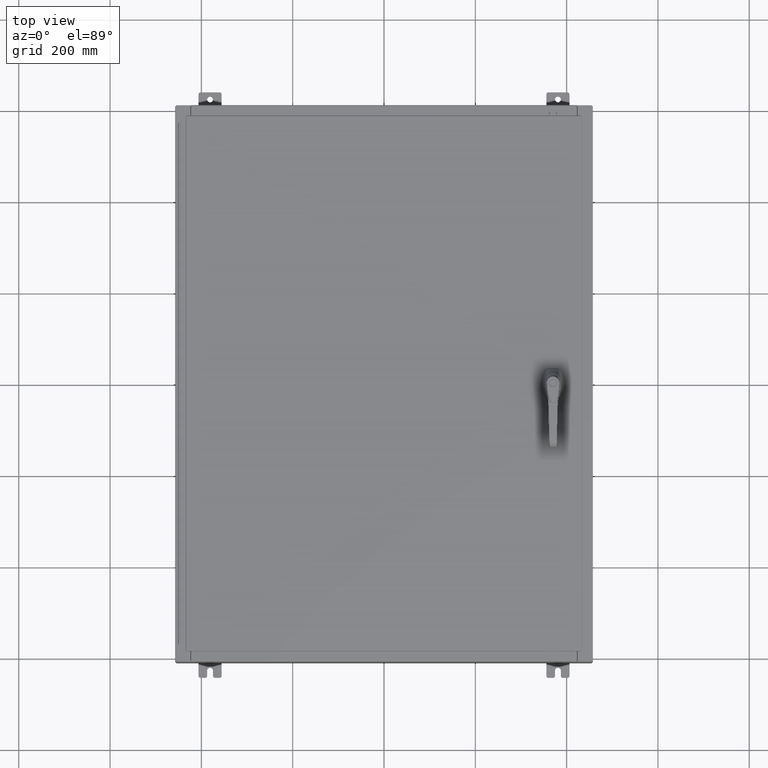
[diagram: clean part render]
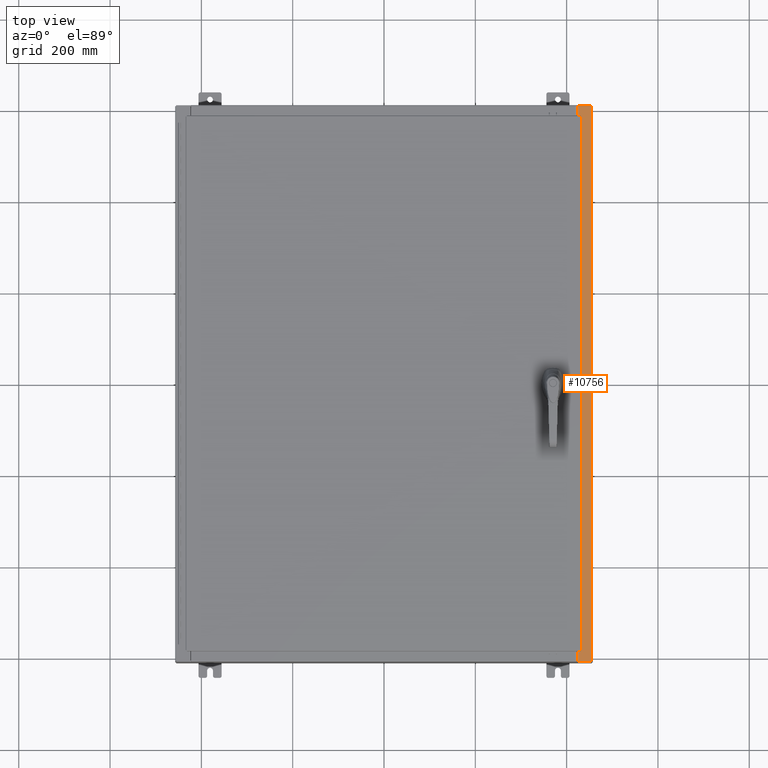
[diagram: same view with one face highlighted and labeled with its STEP entity id]
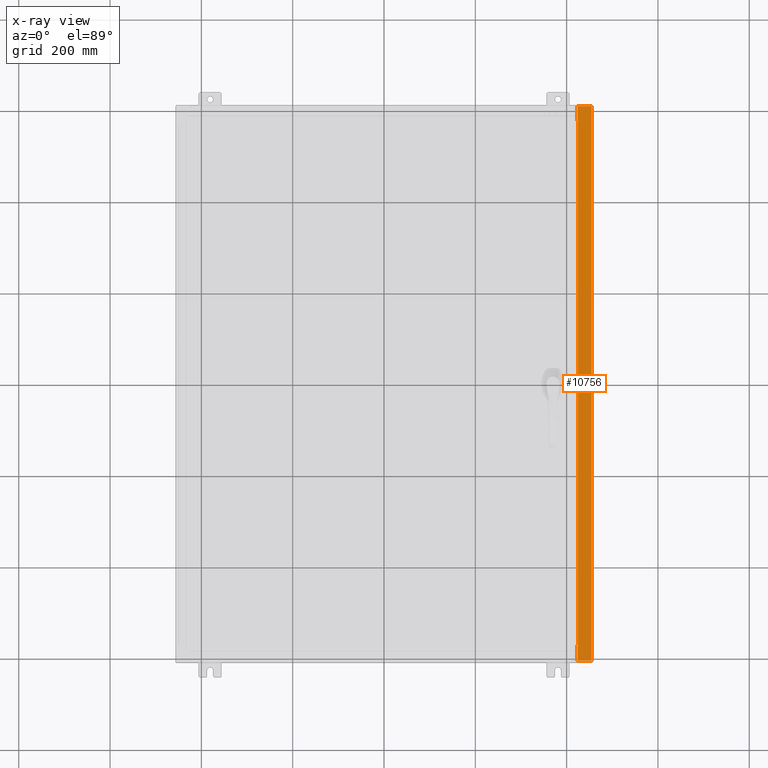
[diagram: x-ray of the same camera — body ghosted, the highlighted face saturated]
A machine part, top view. The second image highlights one B-rep face of the part: STEP entity #10756.
The next image is the same camera in x-ray: the body ghosted, the highlighted face saturated — about 0% of this face is hidden behind the body in this view.
In plain terms, the highlighted planar face has unit normal (-0, 0, -1).
Its self-contained STEP definition (entity closure, byte-faithful):
#1168 = ORIENTED_EDGE ( 'NONE', *, *, #86715, .F. ) ;
#1664 = CARTESIAN_POINT ( 'NONE',  ( 16.71270000000002700, -22.59374999999998900, 7.925300000000010700 ) ) ;
#1919 = VERTEX_POINT ( 'NONE', #24453 ) ;
#3367 = EDGE_CURVE ( 'NONE', #8638, #27584, #125350, .T. ) ;
#3794 = CARTESIAN_POINT ( 'NONE',  ( 16.71270000000002700, 22.59374999999997200, 7.925300000000010700 ) ) ;
#6255 = CARTESIAN_POINT ( 'NONE',  ( 16.75005000000002300, 22.61242499999997000, 7.925300000000010700 ) ) ;
#7481 = ORIENTED_EDGE ( 'NONE', *, *, #3367, .F. ) ;
#8638 = VERTEX_POINT ( 'NONE', #89455 ) ;
#8715 = EDGE_LOOP ( 'NONE', ( #110999, #81460, #71180, #92920, #82455, #108699, #91904, #1168, #49259, #58055, #128314, #7481 ) ) ;
#10756 = ADVANCED_FACE ( 'NONE', ( #42949 ), #53266, .F. ) ;
#16660 = DIRECTION ( 'NONE',  ( 1.000000000000000000, 0.0000000000000000000, 0.0000000000000000000 ) ) ;
#17614 = CIRCLE ( 'NONE', #58173, 0.01867499999999949400 ) ;
#18715 = VERTEX_POINT ( 'NONE', #125298 ) ;
#21896 = VECTOR ( 'NONE', #64387, 39.37007874015748100 ) ;
#22095 = CARTESIAN_POINT ( 'NONE',  ( 16.75005000000002300, 22.63109999999996800, 7.925300000000006200 ) ) ;
#24453 = CARTESIAN_POINT ( 'NONE',  ( 16.69970000000002500, -23.92529999999998900, 7.925300000000007100 ) ) ;
#24490 = LINE ( 'NONE', #118650, #104021 ) ;
#24946 = EDGE_CURVE ( 'NONE', #54599, #8638, #86908, .T. ) ;
#26756 = DIRECTION ( 'NONE',  ( -0.0000000000000000000, -1.000000000000000000, -0.0000000000000000000 ) ) ;
#27584 = VERTEX_POINT ( 'NONE', #69252 ) ;
#29890 = VERTEX_POINT ( 'NONE', #22095 ) ;
#29950 = VERTEX_POINT ( 'NONE', #63749 ) ;
#30569 = CARTESIAN_POINT ( 'NONE',  ( 16.71270000000002700, 22.59374999999997200, 7.925300000000010700 ) ) ;
#31969 = EDGE_CURVE ( 'NONE', #29950, #52645, #118394, .T. ) ;
#35371 = LINE ( 'NONE', #127483, #87312 ) ;
#35667 = VECTOR ( 'NONE', #84639, 39.37007874015748100 ) ;
#37323 = VECTOR ( 'NONE', #101300, 39.37007874015748100 ) ;
#39145 = CARTESIAN_POINT ( 'NONE',  ( 4.972393517341168900E-014, -23.92529999999998900, 7.925300000000111000 ) ) ;
#42949 = FACE_OUTER_BOUND ( 'NONE', #8715, .T. ) ;
#43277 = CARTESIAN_POINT ( 'NONE',  ( 4.972393517341168900E-014, 0.0000000000000000000, 7.925300000000111000 ) ) ;
#47857 = CARTESIAN_POINT ( 'NONE',  ( 16.69970000000002500, -22.63109999999998600, 7.925300000000007100 ) ) ;
#48979 = VERTEX_POINT ( 'NONE', #76447 ) ;
#49259 = ORIENTED_EDGE ( 'NONE', *, *, #86936, .F. ) ;
#49971 = VECTOR ( 'NONE', #76347, 39.37007874015748100 ) ;
#51349 = LINE ( 'NONE', #88885, #78962 ) ;
#52645 = VERTEX_POINT ( 'NONE', #30569 ) ;
#52661 = LINE ( 'NONE', #126558, #21896 ) ;
#53266 = PLANE ( 'NONE',  #74366 ) ;
#53717 = DIRECTION ( 'NONE',  ( -6.241167087353086200E-015, 0.0000000000000000000, -1.000000000000000000 ) ) ;
#54599 = VERTEX_POINT ( 'NONE', #47857 ) ;
#58055 = ORIENTED_EDGE ( 'NONE', *, *, #31969, .F. ) ;
#58173 = AXIS2_PLACEMENT_3D ( 'NONE', #6255, #78801, #16660 ) ;
#59234 = VECTOR ( 'NONE', #122289, 39.37007874015748100 ) ;
#63749 = CARTESIAN_POINT ( 'NONE',  ( 16.71270000000002700, -22.59374999999998900, 7.925300000000010700 ) ) ;
#64387 = DIRECTION ( 'NONE',  ( -1.000000000000000000, 0.0000000000000000000, -4.340572780400098900E-014 ) ) ;
#64789 = EDGE_CURVE ( 'NONE', #109483, #66278, #35371, .T. ) ;
#64869 = DIRECTION ( 'NONE',  ( -1.000000000000000000, 2.189528850507527200E-047, 6.241167087353087800E-015 ) ) ;
#66278 = VERTEX_POINT ( 'NONE', #99991 ) ;
#68052 = CARTESIAN_POINT ( 'NONE',  ( 16.75005000000002300, -22.61242499999998800, 7.925300000000010700 ) ) ;
#69252 = CARTESIAN_POINT ( 'NONE',  ( 16.75005000000002300, -22.59374999999998900, 7.925300000000006200 ) ) ;
#69877 = CARTESIAN_POINT ( 'NONE',  ( 16.69970000000002500, -2.698656257853499100E-030, 7.925300000000007100 ) ) ;
#71180 = ORIENTED_EDGE ( 'NONE', *, *, #114902, .T. ) ;
#72933 = AXIS2_PLACEMENT_3D ( 'NONE', #68052, #79855, #78096 ) ;
#74104 = VECTOR ( 'NONE', #120265, 39.37007874015748100 ) ;
#74366 = AXIS2_PLACEMENT_3D ( 'NONE', #43277, #53717, #126311 ) ;
#75265 = EDGE_CURVE ( 'NONE', #66278, #126499, #105682, .T. ) ;
#75575 = EDGE_CURVE ( 'NONE', #27584, #29950, #24490, .T. ) ;
#76347 = DIRECTION ( 'NONE',  ( 1.000000000000000000, 0.0000000000000000000, 0.0000000000000000000 ) ) ;
#76447 = CARTESIAN_POINT ( 'NONE',  ( 17.91230000000002300, -23.92529999999998900, 7.925300000000000000 ) ) ;
#77613 = LINE ( 'NONE', #3794, #49971 ) ;
#78057 = CARTESIAN_POINT ( 'NONE',  ( 16.69970000000002500, 22.63109999999996800, 7.925300000000007100 ) ) ;
#78096 = DIRECTION ( 'NONE',  ( 1.000000000000000000, 0.0000000000000000000, 0.0000000000000000000 ) ) ;
#78801 = DIRECTION ( 'NONE',  ( 6.241167087353086200E-015, 0.0000000000000000000, 1.000000000000000000 ) ) ;
#78962 = VECTOR ( 'NONE', #26756, 39.37007874015748100 ) ;
#79855 = DIRECTION ( 'NONE',  ( 6.241167087353086200E-015, 0.0000000000000000000, 1.000000000000000000 ) ) ;
#80250 = EDGE_CURVE ( 'NONE', #29890, #126499, #52661, .T. ) ;
#81460 = ORIENTED_EDGE ( 'NONE', *, *, #95677, .T. ) ;
#82455 = ORIENTED_EDGE ( 'NONE', *, *, #64789, .T. ) ;
#84639 = DIRECTION ( 'NONE',  ( -0.0000000000000000000, 1.000000000000000000, -0.0000000000000000000 ) ) ;
#86715 = EDGE_CURVE ( 'NONE', #18715, #29890, #17614, .T. ) ;
#86908 = LINE ( 'NONE', #101481, #59234 ) ;
#86936 = EDGE_CURVE ( 'NONE', #52645, #18715, #77613, .T. ) ;
#87312 = VECTOR ( 'NONE', #64869, 39.37007874015748100 ) ;
#88885 = CARTESIAN_POINT ( 'NONE',  ( 17.91230000000002300, -23.92529999999998900, 7.925300000000000000 ) ) ;
#89455 = CARTESIAN_POINT ( 'NONE',  ( 16.75005000000002300, -22.63109999999998600, 7.925300000000006200 ) ) ;
#91904 = ORIENTED_EDGE ( 'NONE', *, *, #80250, .F. ) ;
#92920 = ORIENTED_EDGE ( 'NONE', *, *, #118144, .F. ) ;
#95677 = EDGE_CURVE ( 'NONE', #54599, #1919, #98539, .T. ) ;
#98312 = DIRECTION ( 'NONE',  ( -1.000000000000000000, 0.0000000000000000000, 0.0000000000000000000 ) ) ;
#98539 = LINE ( 'NONE', #69877, #74104 ) ;
#99991 = CARTESIAN_POINT ( 'NONE',  ( 16.69970000000002500, 23.92529999999998200, 7.925300000000007100 ) ) ;
#101300 = DIRECTION ( 'NONE',  ( 1.000000000000000000, 2.036089684584814400E-032, -6.241167087353087800E-015 ) ) ;
#101481 = CARTESIAN_POINT ( 'NONE',  ( 16.69970000000002500, -22.63109999999998600, 7.925300000000008900 ) ) ;
#102456 = VECTOR ( 'NONE', #113744, 39.37007874015748100 ) ;
#103375 = CARTESIAN_POINT ( 'NONE',  ( 16.69970000000002500, -2.698656257853499100E-030, 7.925300000000007100 ) ) ;
#104021 = VECTOR ( 'NONE', #98312, 39.37007874015748100 ) ;
#105682 = LINE ( 'NONE', #103375, #102456 ) ;
#108699 = ORIENTED_EDGE ( 'NONE', *, *, #75265, .T. ) ;
#109483 = VERTEX_POINT ( 'NONE', #120605 ) ;
#110999 = ORIENTED_EDGE ( 'NONE', *, *, #24946, .F. ) ;
#113744 = DIRECTION ( 'NONE',  ( -1.615990860825944700E-031, -1.000000000000000000, 1.008566897405026800E-045 ) ) ;
#114902 = EDGE_CURVE ( 'NONE', #1919, #48979, #116799, .T. ) ;
#116799 = LINE ( 'NONE', #39145, #37323 ) ;
#118144 = EDGE_CURVE ( 'NONE', #109483, #48979, #51349, .T. ) ;
#118394 = LINE ( 'NONE', #1664, #35667 ) ;
#118650 = CARTESIAN_POINT ( 'NONE',  ( 16.75005000000002300, -22.59374999999998900, 7.925300000000010700 ) ) ;
#120265 = DIRECTION ( 'NONE',  ( -1.615990860825944700E-031, -1.000000000000000000, 1.008566897405026800E-045 ) ) ;
#120605 = CARTESIAN_POINT ( 'NONE',  ( 17.91230000000002300, 23.92529999999998600, 7.925300000000000000 ) ) ;
#122289 = DIRECTION ( 'NONE',  ( 1.000000000000000000, 0.0000000000000000000, 4.340572780400098900E-014 ) ) ;
#125298 = CARTESIAN_POINT ( 'NONE',  ( 16.75005000000002300, 22.59374999999997200, 7.925300000000006200 ) ) ;
#125350 = CIRCLE ( 'NONE', #72933, 0.01867499999999949400 ) ;
#126311 = DIRECTION ( 'NONE',  ( -1.000000000000000000, 0.0000000000000000000, 6.241167087353086200E-015 ) ) ;
#126499 = VERTEX_POINT ( 'NONE', #78057 ) ;
#126558 = CARTESIAN_POINT ( 'NONE',  ( 16.75005000000002300, 22.63109999999996800, 7.925300000000010700 ) ) ;
#127483 = CARTESIAN_POINT ( 'NONE',  ( 4.972393517341168900E-014, 23.92529999999998600, 7.925300000000111000 ) ) ;
#128314 = ORIENTED_EDGE ( 'NONE', *, *, #75575, .F. ) ;